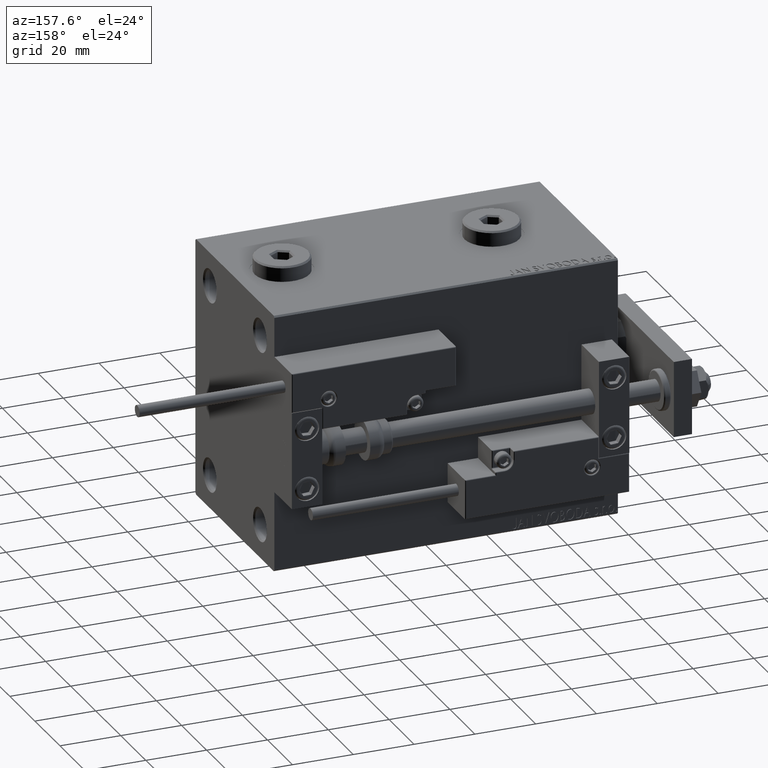
[diagram: clean part render]
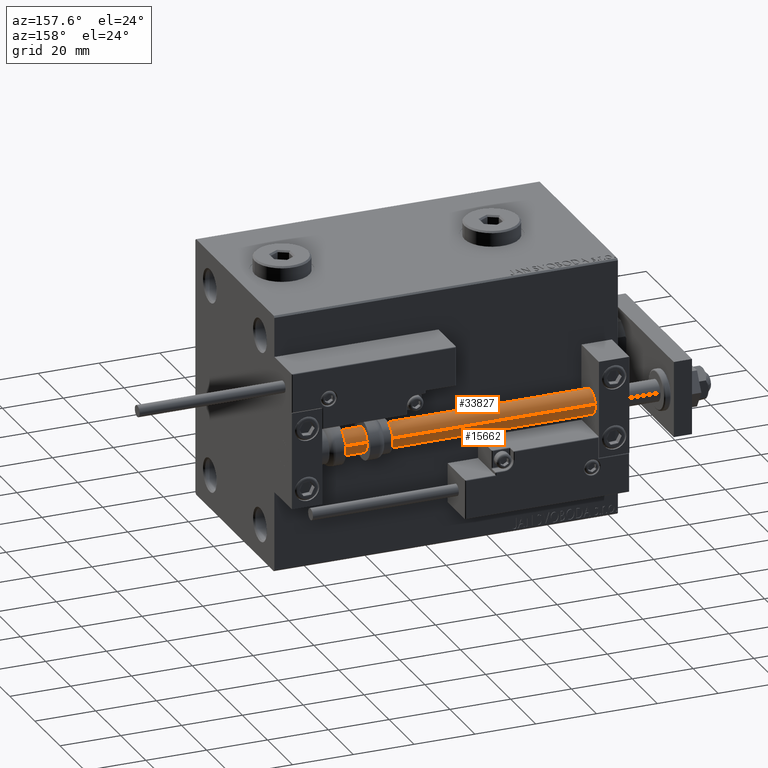
[diagram: same view with one multi-face feature highlighted, each face labeled with its STEP entity id]
A machine part, auxiliary view. The highlighted faces form ONE feature: a constant-radius fillet chain: 2 tangent blend faces with common blend radius 4 mm. The faces share edges in the B-rep.
Their STEP definitions:
[1] entity #15662 (Cylinder):
#1300 = EDGE_CURVE ( 'NONE', #42577, #48446, #19365, .T. ) ;
#3706 = CARTESIAN_POINT ( 'NONE',  ( -4.000000000000000000, 0.000000000000000000, 113.0000000000000000 ) ) ;
#4324 = CARTESIAN_POINT ( 'NONE',  ( 0.000000000000000000, 0.000000000000000000, 113.0000000000000000 ) ) ;
#8407 = ORIENTED_EDGE ( 'NONE', *, *, #39472, .F. ) ;
#8544 = CARTESIAN_POINT ( 'NONE',  ( 4.000000000000000000, 4.898587196589412829E-16, 113.0000000000000000 ) ) ;
#10036 = ORIENTED_EDGE ( 'NONE', *, *, #26020, .F. ) ;
#12974 = AXIS2_PLACEMENT_3D ( 'NONE', #4324, #40468, #34980 ) ;
#14762 = DIRECTION ( 'NONE',  ( -0.000000000000000000, -0.000000000000000000, -1.000000000000000000 ) ) ;
#15084 = VECTOR ( 'NONE', #20746, 1000.000000000000000 ) ;
#15304 = LINE ( 'NONE', #23515, #16511 ) ;
#15662 = ADVANCED_FACE ( 'NONE', ( #52437 ), #22745, .T. ) ;
#15740 = LINE ( 'NONE', #8544, #15084 ) ;
#16511 = VECTOR ( 'NONE', #14762, 1000.000000000000000 ) ;
#16913 = CARTESIAN_POINT ( 'NONE',  ( -4.000000000000000000, 0.000000000000000000, 2.000000000000029310 ) ) ;
#17153 = ORIENTED_EDGE ( 'NONE', *, *, #43475, .T. ) ;
#19365 = CIRCLE ( 'NONE', #21070, 4.000000000000000000 ) ;
#20124 = ORIENTED_EDGE ( 'NONE', *, *, #1300, .T. ) ;
#20746 = DIRECTION ( 'NONE',  ( -0.000000000000000000, -0.000000000000000000, -1.000000000000000000 ) ) ;
#21070 = AXIS2_PLACEMENT_3D ( 'NONE', #42191, #22244, #26751 ) ;
#22244 = DIRECTION ( 'NONE',  ( -0.000000000000000000, -0.000000000000000000, 1.000000000000000000 ) ) ;
#22745 = CYLINDRICAL_SURFACE ( 'NONE', #12974, 4.000000000000000000 ) ;
#23515 = CARTESIAN_POINT ( 'NONE',  ( -4.000000000000000000, 0.000000000000000000, 113.0000000000000000 ) ) ;
#23754 = EDGE_LOOP ( 'NONE', ( #10036, #8407, #17153, #20124 ) ) ;
#25781 = CARTESIAN_POINT ( 'NONE',  ( 4.000000000000000000, 4.898587196589412829E-16, 113.0000000000000000 ) ) ;
#26020 = EDGE_CURVE ( 'NONE', #41149, #48446, #15740, .T. ) ;
#26751 = DIRECTION ( 'NONE',  ( 1.000000000000000000, 0.000000000000000000, 0.000000000000000000 ) ) ;
#29838 = DIRECTION ( 'NONE',  ( 1.000000000000000000, 0.000000000000000000, 0.000000000000000000 ) ) ;
#30683 = VERTEX_POINT ( 'NONE', #3706 ) ;
#32467 = CARTESIAN_POINT ( 'NONE',  ( 4.000000000000000000, 4.898587196589412829E-16, 2.000000000000029310 ) ) ;
#34980 = DIRECTION ( 'NONE',  ( -1.000000000000000000, 0.000000000000000000, 0.000000000000000000 ) ) ;
#35853 = CIRCLE ( 'NONE', #51137, 4.000000000000000000 ) ;
#39472 = EDGE_CURVE ( 'NONE', #30683, #41149, #35853, .T. ) ;
#40468 = DIRECTION ( 'NONE',  ( -0.000000000000000000, -0.000000000000000000, -1.000000000000000000 ) ) ;
#41149 = VERTEX_POINT ( 'NONE', #25781 ) ;
#42191 = CARTESIAN_POINT ( 'NONE',  ( 0.000000000000000000, 0.000000000000000000, 2.000000000000029310 ) ) ;
#42577 = VERTEX_POINT ( 'NONE', #16913 ) ;
#43475 = EDGE_CURVE ( 'NONE', #30683, #42577, #15304, .T. ) ;
#46326 = DIRECTION ( 'NONE',  ( 0.000000000000000000, 0.000000000000000000, 1.000000000000000000 ) ) ;
#48446 = VERTEX_POINT ( 'NONE', #32467 ) ;
#49509 = CARTESIAN_POINT ( 'NONE',  ( 0.000000000000000000, 0.000000000000000000, 113.0000000000000000 ) ) ;
#51137 = AXIS2_PLACEMENT_3D ( 'NONE', #49509, #46326, #29838 ) ;
#52437 = FACE_OUTER_BOUND ( 'NONE', #23754, .T. ) ;
[2] entity #33827 (Cylinder):
#1928 = CIRCLE ( 'NONE', #4473, 4.000000000000000000 ) ;
#2428 = EDGE_CURVE ( 'NONE', #48446, #42577, #8422, .T. ) ;
#2431 = ORIENTED_EDGE ( 'NONE', *, *, #11283, .F. ) ;
#3159 = ORIENTED_EDGE ( 'NONE', *, *, #43475, .F. ) ;
#3706 = CARTESIAN_POINT ( 'NONE',  ( -4.000000000000000000, 0.000000000000000000, 113.0000000000000000 ) ) ;
#4473 = AXIS2_PLACEMENT_3D ( 'NONE', #39682, #15512, #7523 ) ;
#7523 = DIRECTION ( 'NONE',  ( 1.000000000000000000, 0.000000000000000000, 0.000000000000000000 ) ) ;
#8414 = DIRECTION ( 'NONE',  ( -0.000000000000000000, -0.000000000000000000, 1.000000000000000000 ) ) ;
#8422 = CIRCLE ( 'NONE', #14345, 4.000000000000000000 ) ;
#8544 = CARTESIAN_POINT ( 'NONE',  ( 4.000000000000000000, 4.898587196589412829E-16, 113.0000000000000000 ) ) ;
#11283 = EDGE_CURVE ( 'NONE', #41149, #30683, #1928, .T. ) ;
#11923 = DIRECTION ( 'NONE',  ( -1.000000000000000000, 0.000000000000000000, 0.000000000000000000 ) ) ;
#14345 = AXIS2_PLACEMENT_3D ( 'NONE', #32846, #8414, #52263 ) ;
#14762 = DIRECTION ( 'NONE',  ( -0.000000000000000000, -0.000000000000000000, -1.000000000000000000 ) ) ;
#15084 = VECTOR ( 'NONE', #20746, 1000.000000000000000 ) ;
#15304 = LINE ( 'NONE', #23515, #16511 ) ;
#15512 = DIRECTION ( 'NONE',  ( 0.000000000000000000, 0.000000000000000000, 1.000000000000000000 ) ) ;
#15640 = ORIENTED_EDGE ( 'NONE', *, *, #2428, .T. ) ;
#15740 = LINE ( 'NONE', #8544, #15084 ) ;
#16511 = VECTOR ( 'NONE', #14762, 1000.000000000000000 ) ;
#16913 = CARTESIAN_POINT ( 'NONE',  ( -4.000000000000000000, 0.000000000000000000, 2.000000000000029310 ) ) ;
#16948 = ORIENTED_EDGE ( 'NONE', *, *, #26020, .T. ) ;
#20746 = DIRECTION ( 'NONE',  ( -0.000000000000000000, -0.000000000000000000, -1.000000000000000000 ) ) ;
#23515 = CARTESIAN_POINT ( 'NONE',  ( -4.000000000000000000, 0.000000000000000000, 113.0000000000000000 ) ) ;
#25781 = CARTESIAN_POINT ( 'NONE',  ( 4.000000000000000000, 4.898587196589412829E-16, 113.0000000000000000 ) ) ;
#26020 = EDGE_CURVE ( 'NONE', #41149, #48446, #15740, .T. ) ;
#30683 = VERTEX_POINT ( 'NONE', #3706 ) ;
#32467 = CARTESIAN_POINT ( 'NONE',  ( 4.000000000000000000, 4.898587196589412829E-16, 2.000000000000029310 ) ) ;
#32846 = CARTESIAN_POINT ( 'NONE',  ( 0.000000000000000000, 0.000000000000000000, 2.000000000000029310 ) ) ;
#33827 = ADVANCED_FACE ( 'NONE', ( #43542 ), #52039, .T. ) ;
#39682 = CARTESIAN_POINT ( 'NONE',  ( 0.000000000000000000, 0.000000000000000000, 113.0000000000000000 ) ) ;
#39858 = AXIS2_PLACEMENT_3D ( 'NONE', #52308, #47541, #11923 ) ;
#41149 = VERTEX_POINT ( 'NONE', #25781 ) ;
#42577 = VERTEX_POINT ( 'NONE', #16913 ) ;
#43475 = EDGE_CURVE ( 'NONE', #30683, #42577, #15304, .T. ) ;
#43542 = FACE_OUTER_BOUND ( 'NONE', #52525, .T. ) ;
#47541 = DIRECTION ( 'NONE',  ( -0.000000000000000000, -0.000000000000000000, -1.000000000000000000 ) ) ;
#48446 = VERTEX_POINT ( 'NONE', #32467 ) ;
#52039 = CYLINDRICAL_SURFACE ( 'NONE', #39858, 4.000000000000000000 ) ;
#52263 = DIRECTION ( 'NONE',  ( 1.000000000000000000, 0.000000000000000000, 0.000000000000000000 ) ) ;
#52308 = CARTESIAN_POINT ( 'NONE',  ( 0.000000000000000000, 0.000000000000000000, 113.0000000000000000 ) ) ;
#52525 = EDGE_LOOP ( 'NONE', ( #2431, #16948, #15640, #3159 ) ) ;